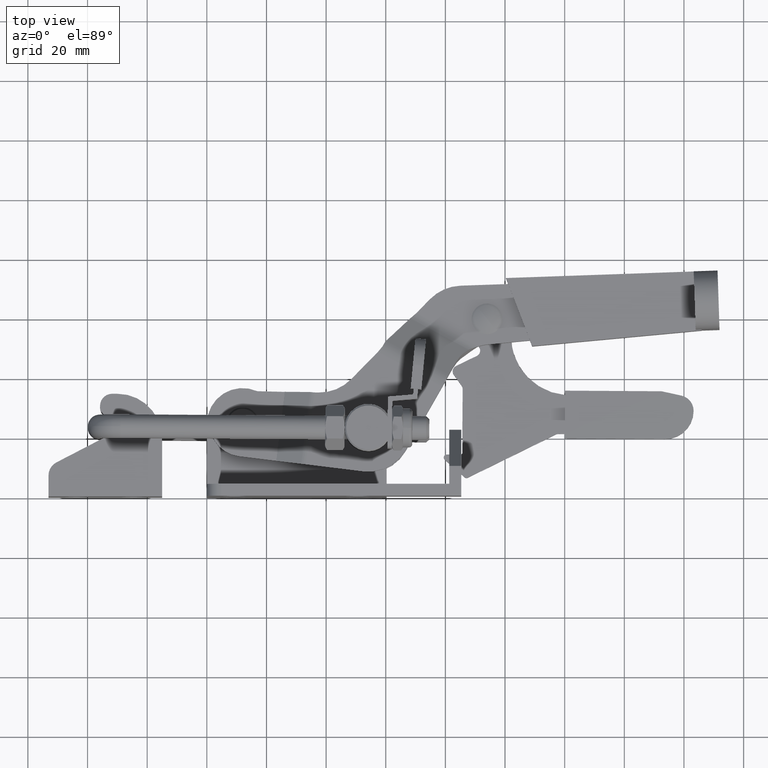
[diagram: clean part render]
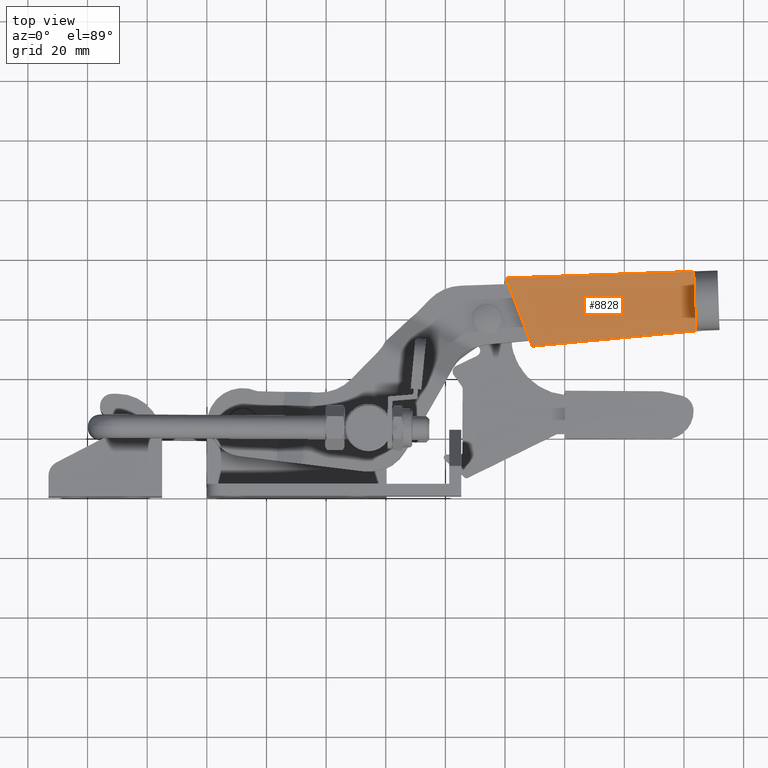
[diagram: same view with one face highlighted and labeled with its STEP entity id]
A machine part, top view. The second image highlights one B-rep face of the part: STEP entity #8828.
In plain terms, the highlighted planar face has unit normal (0, -0, 1).
Its self-contained STEP definition (entity closure, byte-faithful):
#32 = DIRECTION ( 'NONE',  ( 0.9994298824512516400, 0.03376255416104117400, -3.250894810415729700E-019 ) ) ;
#666 = DIRECTION ( 'NONE',  ( -0.03376255416104340100, 0.9994298824512516400, 3.612752356186332500E-020 ) ) ;
#1159 = CARTESIAN_POINT ( 'NONE',  ( 165.9207476311167700, 55.84691848365240200, 6.000000000000010700 ) ) ;
#1342 = LINE ( 'NONE', #1159, #7548 ) ;
#2025 = CARTESIAN_POINT ( 'NONE',  ( 163.2634401568456300, 75.56676827558533200, 6.000000000000010700 ) ) ;
#3049 = ORIENTED_EDGE ( 'NONE', *, *, #8611, .T. ) ;
#3120 = VECTOR ( 'NONE', #6464, 999.9999999999998900 ) ;
#3885 = CARTESIAN_POINT ( 'NONE',  ( 165.9128174517917100, 56.08166548036551500, 6.000000000000010700 ) ) ;
#3951 = LINE ( 'NONE', #5865, #9477 ) ;
#4423 = CARTESIAN_POINT ( 'NONE',  ( 165.9207476311167700, 55.84691848365240200, 6.000000000000010700 ) ) ;
#4620 = ORIENTED_EDGE ( 'NONE', *, *, #14587, .T. ) ;
#4712 = VERTEX_POINT ( 'NONE', #4788 ) ;
#4788 = CARTESIAN_POINT ( 'NONE',  ( 100.3400031123365300, 73.36817024773954200, 6.000000000000010700 ) ) ;
#5863 = VECTOR ( 'NONE', #10567, 1000.000000000000100 ) ;
#5865 = CARTESIAN_POINT ( 'NONE',  ( 165.9128174517916800, 56.08166548036550800, 6.000000000000010700 ) ) ;
#5888 = EDGE_CURVE ( 'NONE', #5993, #10841, #3951, .T. ) ;
#5993 = VERTEX_POINT ( 'NONE', #14507 ) ;
#6218 = VECTOR ( 'NONE', #14151, 1000.000000000000100 ) ;
#6452 = CARTESIAN_POINT ( 'NONE',  ( 100.3400031123365300, 73.36817024773954200, 6.000000000000010700 ) ) ;
#6464 = DIRECTION ( 'NONE',  ( 0.3593553522336909200, -0.9332007987678750900, -1.406467083547465300E-019 ) ) ;
#6496 = ORIENTED_EDGE ( 'NONE', *, *, #10662, .T. ) ;
#6780 = CARTESIAN_POINT ( 'NONE',  ( 109.1292052085740500, 50.54371427189738600, 6.000000000000010700 ) ) ;
#7396 = VERTEX_POINT ( 'NONE', #6780 ) ;
#7548 = VECTOR ( 'NONE', #666, 1000.000000000000100 ) ;
#7596 = DIRECTION ( 'NONE',  ( 0.9924473458923386300, -0.1226713725008927200, -3.267436618005505000E-019 ) ) ;
#7658 = DIRECTION ( 'NONE',  ( 3.261238992944794200E-019, -2.513107541583627300E-020, 1.000000000000000000 ) ) ;
#7677 = CARTESIAN_POINT ( 'NONE',  ( 165.2522278423769000, 75.63625819680692100, 6.000000000000010700 ) ) ;
#7939 = ORIENTED_EDGE ( 'NONE', *, *, #8451, .T. ) ;
#8136 = PLANE ( 'NONE',  #8642 ) ;
#8451 = EDGE_CURVE ( 'NONE', #8960, #10841, #1342, .T. ) ;
#8611 = EDGE_CURVE ( 'NONE', #15003, #4712, #11622, .T. ) ;
#8642 = AXIS2_PLACEMENT_3D ( 'NONE', #7677, #7658, #7596 ) ;
#8663 = FACE_OUTER_BOUND ( 'NONE', #11144, .T. ) ;
#8828 = ADVANCED_FACE ( 'NONE', ( #8663 ), #8136, .T. ) ;
#8960 = VERTEX_POINT ( 'NONE', #4423 ) ;
#9011 = LINE ( 'NONE', #10965, #5863 ) ;
#9477 = VECTOR ( 'NONE', #32, 1000.000000000000100 ) ;
#10476 = EDGE_CURVE ( 'NONE', #7396, #8960, #9011, .T. ) ;
#10567 = DIRECTION ( 'NONE',  ( 0.9956683792300526900, 0.09297568822762203300, -3.223746752060315500E-019 ) ) ;
#10662 = EDGE_CURVE ( 'NONE', #5993, #15003, #15288, .T. ) ;
#10841 = VERTEX_POINT ( 'NONE', #3885 ) ;
#10965 = CARTESIAN_POINT ( 'NONE',  ( 109.1292052085740500, 50.54371427189738600, 6.000000000000010700 ) ) ;
#11144 = EDGE_LOOP ( 'NONE', ( #14702, #6496, #3049, #4620, #11486, #7939 ) ) ;
#11486 = ORIENTED_EDGE ( 'NONE', *, *, #10476, .T. ) ;
#11622 = LINE ( 'NONE', #12942, #14790 ) ;
#12501 = LINE ( 'NONE', #6452, #3120 ) ;
#12851 = DIRECTION ( 'NONE',  ( -0.9993901270650726900, -0.03491953500346133000, 3.250474396872088300E-019 ) ) ;
#12942 = CARTESIAN_POINT ( 'NONE',  ( 165.2522278423769000, 75.63625819680692100, 6.000000000000010700 ) ) ;
#14151 = DIRECTION ( 'NONE',  ( -0.03376255416104136100, 0.9994298824512516400, 3.612752356186266200E-020 ) ) ;
#14366 = CARTESIAN_POINT ( 'NONE',  ( 163.2633623762990300, 75.56907071402645200, 6.000000000000010700 ) ) ;
#14507 = CARTESIAN_POINT ( 'NONE',  ( 163.9239519857137900, 56.01447799758503300, 6.000000000000010700 ) ) ;
#14587 = EDGE_CURVE ( 'NONE', #4712, #7396, #12501, .T. ) ;
#14702 = ORIENTED_EDGE ( 'NONE', *, *, #5888, .F. ) ;
#14790 = VECTOR ( 'NONE', #12851, 1000.000000000000000 ) ;
#15003 = VERTEX_POINT ( 'NONE', #2025 ) ;
#15288 = LINE ( 'NONE', #14366, #6218 ) ;